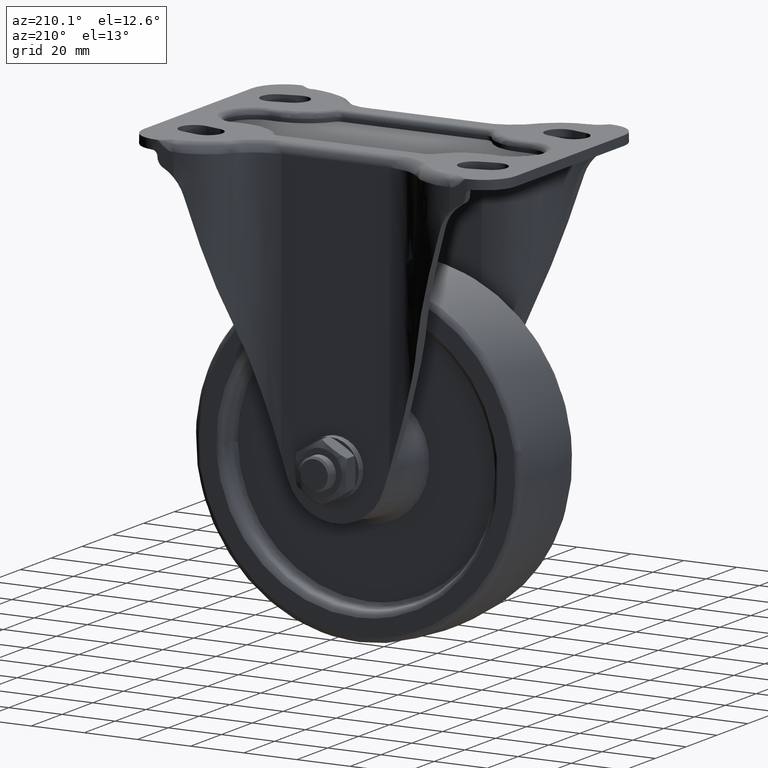
[diagram: clean part render]
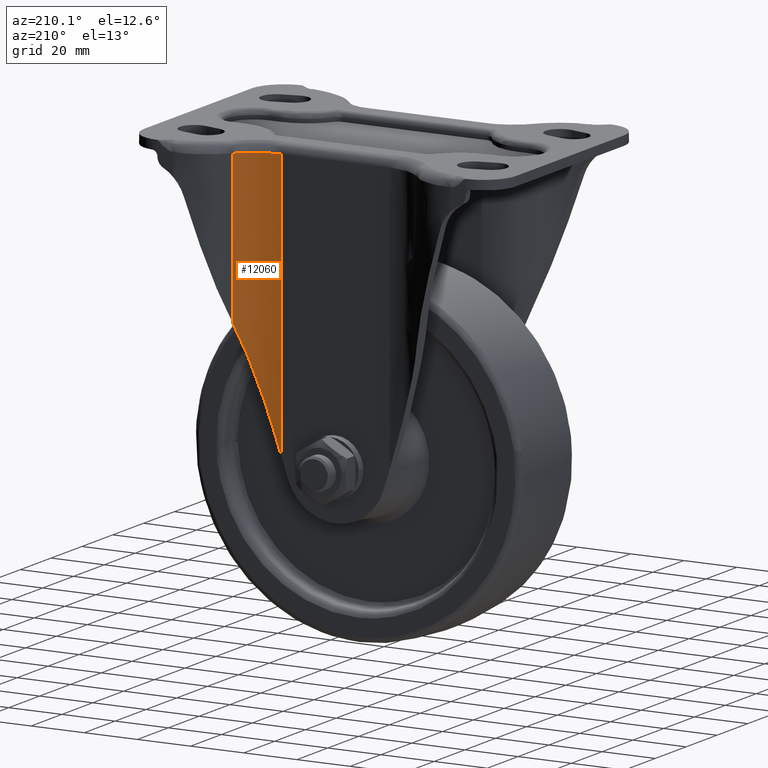
[diagram: same view with one face highlighted and labeled with its STEP entity id]
A machine part, auxiliary view. The second image highlights one B-rep face of the part: STEP entity #12060.
In plain terms, the highlighted face is a freeform B-spline surface patch.
Its self-contained STEP definition (entity closure, byte-faithful):
#10023=CARTESIAN_POINT('',(20.381172492475098,31.500000000000000,102.0));
#10024=VERTEX_POINT('',#10023);
#10071=CARTESIAN_POINT('',(34.609643070861303,38.475000000000001,102.0));
#10072=VERTEX_POINT('',#10071);
#10086=CARTESIAN_POINT('',(20.381172492475098,31.500000000000000,102.0));
#10087=CARTESIAN_POINT('',(29.205030215505278,31.499999999999996,102.0));
#10088=CARTESIAN_POINT('',(34.609643070861260,38.475000000000030,102.0));
#10096=(BOUNDED_CURVE()B_SPLINE_CURVE(2,(#10086,#10087,#10088),.UNSPECIFIED.,.F.,.U.)CURVE()GEOMETRIC_REPRESENTATION_ITEM()QUASI_UNIFORM_CURVE()RATIONAL_B_SPLINE_CURVE((1.0,0.897914249803398,1.0))REPRESENTATION_ITEM(''));
#10097=EDGE_CURVE('',#10024,#10072,#10096,.T.);
#11184=CARTESIAN_POINT('',(20.381172492475098,31.500000000000000,1.315066318885560));
#11185=VERTEX_POINT('',#11184);
#11191=CARTESIAN_POINT('',(34.609643070861303,38.475000000000001,45.416679281145093));
#11192=VERTEX_POINT('',#11191);
#11193=CARTESIAN_POINT('',(34.609643070861253,38.475000000000037,45.416679281145107));
#11194=CARTESIAN_POINT('',(29.205030215505282,31.500000000000004,28.664903814860498));
#11195=CARTESIAN_POINT('',(20.381172492475098,31.500000000000000,1.315066318885564));
#11203=(BOUNDED_CURVE()B_SPLINE_CURVE(2,(#11193,#11194,#11195),.UNSPECIFIED.,.F.,.U.)CURVE()GEOMETRIC_REPRESENTATION_ITEM()QUASI_UNIFORM_CURVE()RATIONAL_B_SPLINE_CURVE((1.0,0.897914249803398,1.0))REPRESENTATION_ITEM(''));
#11204=EDGE_CURVE('',#11192,#11185,#11203,.T.);
#12024=CARTESIAN_POINT('',(34.609643070861303,38.475000000000001,45.416679281145093));
#12025=CARTESIAN_POINT('',(34.609643070861303,38.475000000000001,102.0));
#12026=QUASI_UNIFORM_CURVE('',1,(#12024,#12025),.UNSPECIFIED.,.F.,.U.);
#12027=EDGE_CURVE('',#11192,#10072,#12026,.T.);
#12036=CARTESIAN_POINT('',(35.035251822888853,39.047346797203097,-1.202057023142303));
#12037=CARTESIAN_POINT('',(35.035251822888853,39.047346797203097,104.580051425578600));
#12038=CARTESIAN_POINT('',(29.357783104402216,31.087829210378011,-1.202057023142303));
#12039=CARTESIAN_POINT('',(29.357783104402216,31.087829210378011,104.580051425578570));
#12040=CARTESIAN_POINT('',(19.590334294300991,31.517381310156502,-1.202057023142303));
#12041=CARTESIAN_POINT('',(19.590334294300991,31.517381310156502,104.580051425578590));
#12049=(BOUNDED_SURFACE()B_SPLINE_SURFACE(1,2,((#12036,#12038,#12040),(#12037,#12039,#12041)),.UNSPECIFIED.,.F.,.F.,.U.)B_SPLINE_SURFACE_WITH_KNOTS((2,2),(3,3),(0.0,105.782108448720900),(0.0,18.291638670166890),.UNSPECIFIED.)GEOMETRIC_REPRESENTATION_ITEM()RATIONAL_B_SPLINE_SURFACE(((1.0,0.874888927853371,0.991250560383727),(1.0,0.874888927853371,0.991250560383727)))REPRESENTATION_ITEM('')SURFACE());
#12050=CARTESIAN_POINT('',(20.381172492475098,31.500000000000000,1.315066318885560));
#12051=CARTESIAN_POINT('',(20.381172492475098,31.500000000000000,102.0));
#12052=QUASI_UNIFORM_CURVE('',1,(#12050,#12051),.UNSPECIFIED.,.F.,.U.);
#12053=EDGE_CURVE('',#11185,#10024,#12052,.T.);
#12054=ORIENTED_EDGE('',*,*,#12053,.T.);
#12055=ORIENTED_EDGE('',*,*,#10097,.T.);
#12056=ORIENTED_EDGE('',*,*,#12027,.F.);
#12057=ORIENTED_EDGE('',*,*,#11204,.T.);
#12058=EDGE_LOOP('',(#12054,#12055,#12056,#12057));
#12059=FACE_OUTER_BOUND('',#12058,.T.);
#12060=ADVANCED_FACE('',(#12059),#12049,.F.);